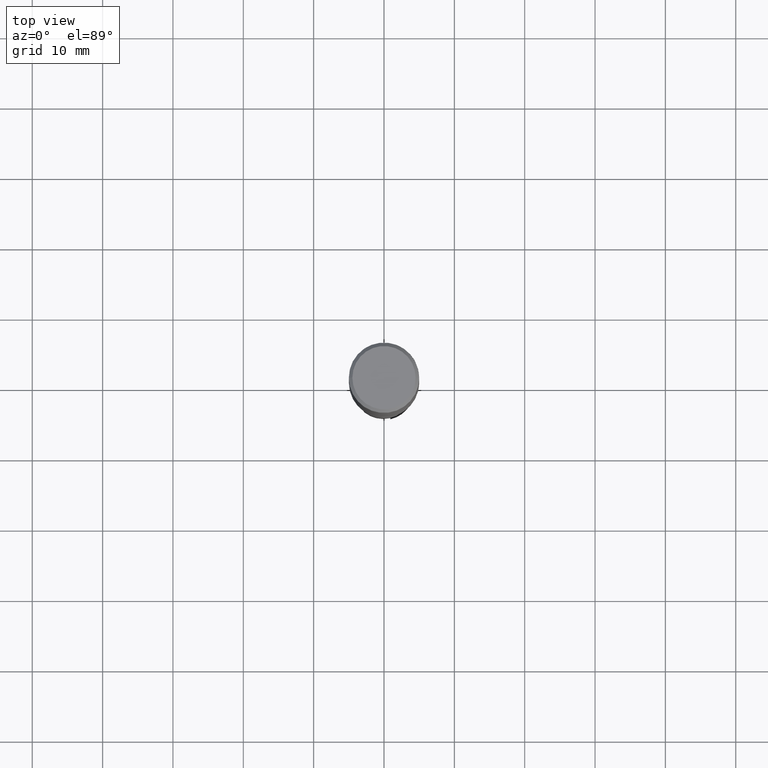
[diagram: clean part render]
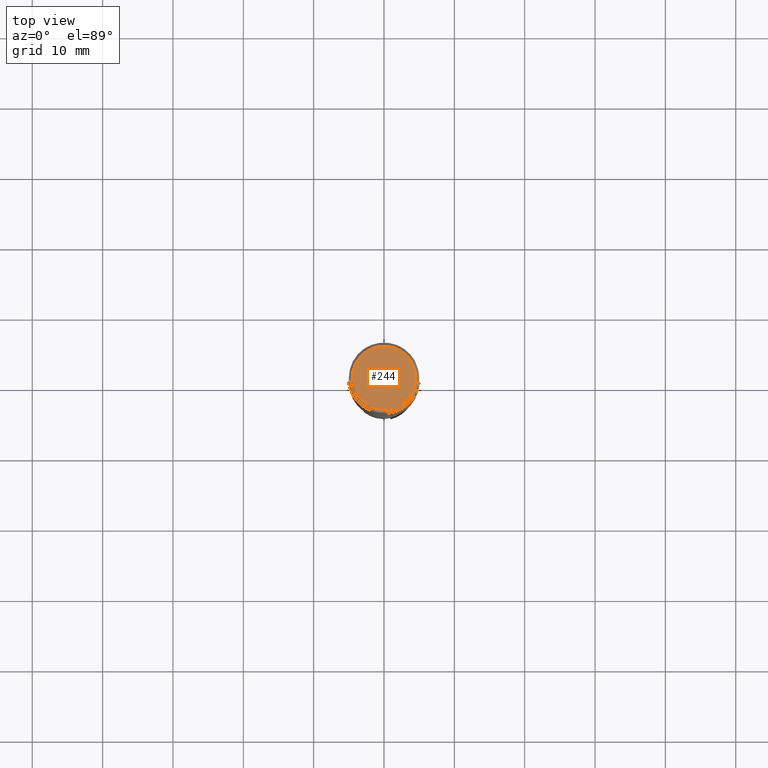
[diagram: same view with one face highlighted and labeled with its STEP entity id]
A machine part, top view. The second image highlights one B-rep face of the part: STEP entity #244.
In plain terms, the highlighted planar face has unit normal (-0, -0, 1).
Its self-contained STEP definition (entity closure, byte-faithful):
#204 = VERTEX_POINT('', #205);
#205 = CARTESIAN_POINT('', (-4.5, 2.75545529808154E-16, 0.));
#211 = EDGE_CURVE('', #204, #204, #212, .T.);
#212 = CIRCLE('', #213, 4.5);
#213 = AXIS2_PLACEMENT_3D('', #214, #215, #216);
#214 = CARTESIAN_POINT('', (-2.18952885050753E-47, 1.25267077750159E-64, -7.44237865339621E-80));
#215 = DIRECTION('', (3.74939945665464E-33, 6.12323399573677E-17, -1.));
#216 = DIRECTION('', (-1., 6.12323399573677E-17, 0.));
#244 = ADVANCED_FACE('', (#245), #248, .T.);
#245 = FACE_OUTER_BOUND('', #246, .T.);
#246 = EDGE_LOOP('', (#247));
#247 = ORIENTED_EDGE('', *, *, #211, .F.);
#248 = PLANE('', #249);
#249 = AXIS2_PLACEMENT_3D('', #250, #251, #252);
#250 = CARTESIAN_POINT('', (7.00035713374682, -7.00035713374682, -4.28648247836569E-16));
#251 = DIRECTION('', (-1.57898385724467E-15, -1.64021619720204E-15, 1.));
#252 = DIRECTION('', (0., 1., 1.64021619720204E-15));